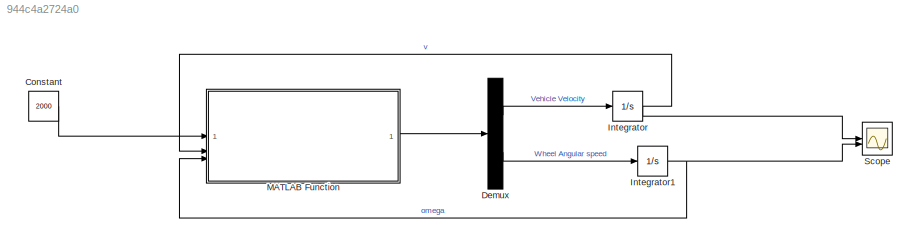
MODEL slx_944c4a2724a0
KIND model
CONFIG AbsTol = auto
CONFIG EnableMultiTasking = off
CONFIG FixedStep = auto
CONFIG MaxStep = auto
CONFIG MinStep = auto
CONFIG RelTol = 1e-3
CONFIG SampleTimeConstraint = Unconstrained
CONFIG SolverName = VariableStepAuto
CONFIG StartTime = 0.0
CONFIG StopTime = 10.0
BLOCK [Constant] Constant
  Value = 2000
BLOCK [Demux] Demux
  Outputs = 2
BLOCK [Integrator] Integrator
BLOCK [Integrator] Integrator1
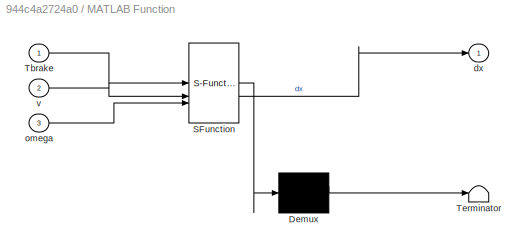
BLOCK [SubSystem] MATLAB Function
  ErrorFcn = Stateflow.Translate.translate
  PermitHierarchicalResolution = ExplicitOnly
  SFBlockType = MATLAB Function
  TreatAsAtomicUnit = on
BLOCK [Demux] MATLAB Function/ Demux 
  Outputs = 1
BLOCK [S-Function] MATLAB Function/ SFunction 
  EnableBusSupport = on
  FunctionName = sf_sfun
  PortCounts = [3 2]
  SFcnIsStateOwnerBlock = off
  SFunctionDeploymentMode = off
  Tag = Stateflow S-Function 2
BLOCK [Terminator] MATLAB Function/ Terminator 
BLOCK [Inport] MATLAB Function/Tbrake
BLOCK [Outport] MATLAB Function/dx
BLOCK [Inport] MATLAB Function/omega
  Port = 3
BLOCK [Inport] MATLAB Function/v
  Port = 2
BLOCK [Scope] Scope
  Floating = off
  NumInputPorts = 2
  ScopeSpecificationString = Simulink.scopes.TimeScopeBlockCfg('CurrentConfiguration', extmgr.ConfigurationSet(extmgr.Configuration('Core','General UI',true),extmgr.Configuration('Core','Source UI',true),extmgr.Configuration('Sources','WiredSimulink',true),extmgr.Configuration('Visuals','Time Domain',true,'SerializedDisplays',{struct('MinYLimReal','-17.40364','MaxYLimReal','156.58821','YLabelReal','','MinYLimMag','0.00000','M...<+2382ch>
LINE Constant:1 -> MATLAB Function:1
LINE Demux:1 -> Integrator:1
LINE Demux:2 -> Integrator1:1
NET Integrator1:1 -> MATLAB Function:3, Scope:2
NET Integrator:1 -> MATLAB Function:2, Scope:1
LINE MATLAB Function:1 -> Demux:1
note: NET lines group one-source signal fan-out (src -> all destinations, sorted); 1:1 wires keep LINE
CHART MATLAB Function states=1 transitions=1
  STATE_LABEL 'eML_blk_kernel()'
  STATE_LABEL 'SCRIPT:\nfunction dx = vehicle_dynamics(Tbrake, v, omega)\n    % Vehicle parameters\n    m = 1500;      % Vehicle mass [kg]\n    Iw = 20;       % Wheel rotational inertia [kg*m^2]\n    Rw = 0.3;      % Wheel radius [m]\n    g = 9.81;      % Gravitational acceleration [m/s^2]\n    \n    % Environmental / aerodynamic parameters\n    rho = 1.225;   % Air density [kg/m^3]\n    Cd = 0.32;     % Aerodynamic drag ...<+1288ch>'
CHART  states=0 transitions=0
